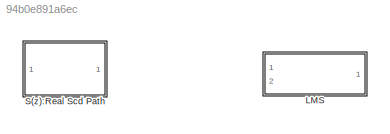
MODEL slx_94b0e891a6ec
KIND library
CONFIG AbsTol = auto
CONFIG EnableMultiTasking = off
CONFIG FixedStep = auto
CONFIG MaxStep = auto
CONFIG MinStep = auto
CONFIG RelTol = 1e-3
CONFIG SampleTimeConstraint = Unconstrained
CONFIG Solver = VariableStepAuto
CONFIG SolverName = VariableStepAuto
CONFIG StartTime = 0.0
CONFIG StopTime = 10.0
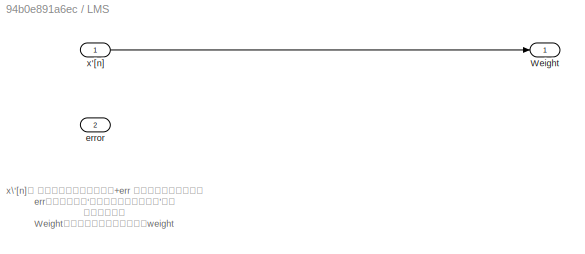
BLOCK [SubSystem] LMS
  Ports = [2, 1]
  RequestExecContextInheritance = off
  Variant = off
BLOCK [Outport] LMS/Weight
  IconDisplay = Port number
BLOCK [Inport] LMS/error
  IconDisplay = Port number
  Port = 2
BLOCK [Inport] LMS/x'[n]
  IconDisplay = Port number
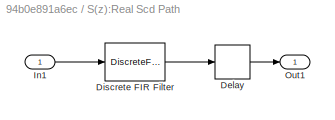
BLOCK [SubSystem] S(z):Real Scd Path
  Ports = [1, 1]
  RequestExecContextInheritance = off
  Variant = off
BLOCK [Delay] S(z):Real Scd Path/Delay
  DelayLength = 1
  InitialCondition = 0
  InputPortMap = u0
  Ports = [1, 1]
BLOCK [DiscreteFir] S(z):Real Scd Path/Discrete FIR Filter
  Coefficients = [0.7 0.5 0.5]
  InputPortMap = u0
  OutputPortMap = o0
  Ports = [1, 1]
BLOCK [Inport] S(z):Real Scd Path/In1
  IconDisplay = Port number
BLOCK [Outport] S(z):Real Scd Path/Out1
  IconDisplay = Port number
ANNOTATION LMS: x\'[n]是 模拟的噪音经过模拟耳朵+err 的整体再通过模拟耳朵 err是真噪音减去‘模拟噪音通过真实耳朵’的差 这两个是输入 Weight是模拟的、生成模拟噪音的weight
LINE LMS/x'[n]:1 -> LMS/Weight:1
LINE S(z):Real Scd Path/Delay:1 -> S(z):Real Scd Path/Out1:1
LINE S(z):Real Scd Path/Discrete FIR Filter:1 -> S(z):Real Scd Path/Delay:1
LINE S(z):Real Scd Path/In1:1 -> S(z):Real Scd Path/Discrete FIR Filter:1
